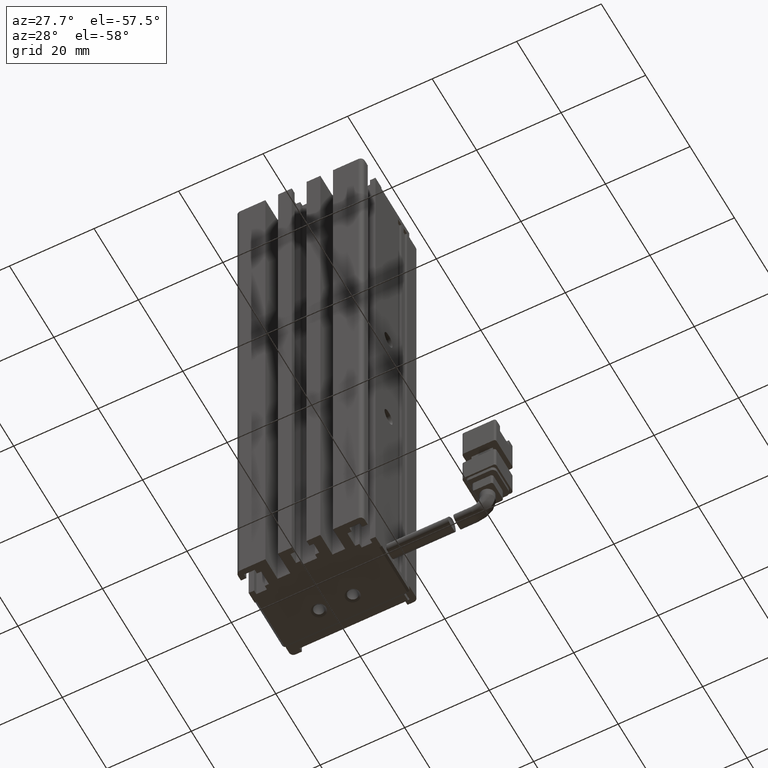
[diagram: clean part render]
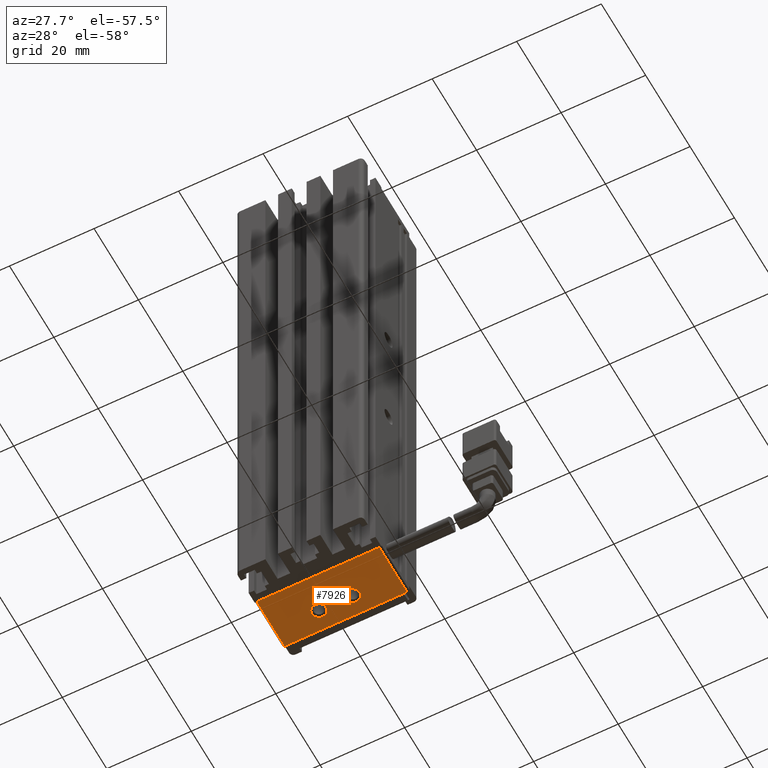
[diagram: same view with one face highlighted and labeled with its STEP entity id]
A machine part, auxiliary view. The second image highlights one B-rep face of the part: STEP entity #7926.
In plain terms, the highlighted planar face has unit normal (0, 0, -1).
Its self-contained STEP definition (entity closure, byte-faithful):
#24 = EDGE_CURVE ( 'NONE', #589, #25171, #19708, .T. ) ;
#589 = VERTEX_POINT ( 'NONE', #9121 ) ;
#909 = FACE_BOUND ( 'NONE', #29024, .T. ) ;
#1016 = CARTESIAN_POINT ( 'NONE',  ( 35.22537974680740500, 27.19594479660386500, -184.9999999999809000 ) ) ;
#1763 = FACE_OUTER_BOUND ( 'NONE', #21278, .T. ) ;
#2201 = CIRCLE ( 'NONE', #22868, 1.700000000008916600 ) ;
#2291 = VECTOR ( 'NONE', #5224, 1000.000000000000000 ) ;
#2828 = EDGE_CURVE ( 'NONE', #21758, #8949, #24576, .T. ) ;
#2857 = DIRECTION ( 'NONE',  ( -0.0000000000000000000, -0.0000000000000000000, 1.000000000000000000 ) ) ;
#3380 = ORIENTED_EDGE ( 'NONE', *, *, #34125, .T. ) ;
#3782 = AXIS2_PLACEMENT_3D ( 'NONE', #20052, #2857, #22919 ) ;
#4656 = VERTEX_POINT ( 'NONE', #1016 ) ;
#4860 = CARTESIAN_POINT ( 'NONE',  ( 26.42537974683542500, 25.69594479660386500, -185.0000000000000000 ) ) ;
#5224 = DIRECTION ( 'NONE',  ( -0.0000000000000000000, -1.000000000000000000, -0.0000000000000000000 ) ) ;
#5235 = EDGE_CURVE ( 'NONE', #8949, #9967, #16528, .T. ) ;
#6006 = EDGE_CURVE ( 'NONE', #4656, #33887, #9673, .T. ) ;
#6600 = CARTESIAN_POINT ( 'NONE',  ( 40.92537974683542500, 19.19594479660386500, -185.0000000000000000 ) ) ;
#7535 = EDGE_LOOP ( 'NONE', ( #34398, #23335 ) ) ;
#7926 = ADVANCED_FACE ( 'NONE', ( #1763, #30505, #909 ), #29436, .T. ) ;
#8826 = DIRECTION ( 'NONE',  ( -0.0000000000000000000, -0.0000000000000000000, 1.000000000000000000 ) ) ;
#8949 = VERTEX_POINT ( 'NONE', #10388 ) ;
#9121 = CARTESIAN_POINT ( 'NONE',  ( 43.22537974682651200, 27.19594479660386500, -185.0000000000000000 ) ) ;
#9252 = CARTESIAN_POINT ( 'NONE',  ( 36.92537974683541800, 27.19594479660386500, -184.9999999999809000 ) ) ;
#9350 = VECTOR ( 'NONE', #29532, 1000.000000000000000 ) ;
#9673 = CIRCLE ( 'NONE', #36397, 1.700000000028012400 ) ;
#9940 = LINE ( 'NONE', #13775, #2291 ) ;
#9967 = VERTEX_POINT ( 'NONE', #29375 ) ;
#10388 = CARTESIAN_POINT ( 'NONE',  ( 26.42537974683542500, 19.19594479660386500, -185.0000000000000000 ) ) ;
#10582 = ORIENTED_EDGE ( 'NONE', *, *, #12462, .T. ) ;
#11295 = VECTOR ( 'NONE', #19657, 1000.000000000000000 ) ;
#11933 = ORIENTED_EDGE ( 'NONE', *, *, #24, .T. ) ;
#12149 = DIRECTION ( 'NONE',  ( -1.000000000000000000, 0.0000000000000000000, 0.0000000000000000000 ) ) ;
#12462 = EDGE_CURVE ( 'NONE', #17598, #21758, #9940, .T. ) ;
#13753 = CARTESIAN_POINT ( 'NONE',  ( 44.92537974683542500, 27.19594479660386500, -185.0000000000000000 ) ) ;
#13775 = CARTESIAN_POINT ( 'NONE',  ( 55.42537974683541800, 25.69594479660386500, -185.0000000000000000 ) ) ;
#14112 = ORIENTED_EDGE ( 'NONE', *, *, #33632, .T. ) ;
#15268 = DIRECTION ( 'NONE',  ( 0.0000000000000000000, 0.0000000000000000000, -1.000000000000000000 ) ) ;
#16237 = AXIS2_PLACEMENT_3D ( 'NONE', #32425, #15268, #35327 ) ;
#16528 = LINE ( 'NONE', #4860, #31801 ) ;
#16616 = DIRECTION ( 'NONE',  ( -1.000000000000000000, 0.0000000000000000000, 0.0000000000000000000 ) ) ;
#16767 = CARTESIAN_POINT ( 'NONE',  ( 40.92537974683542500, 31.69594479660386500, -185.0000000000000000 ) ) ;
#17598 = VERTEX_POINT ( 'NONE', #17972 ) ;
#17972 = CARTESIAN_POINT ( 'NONE',  ( 55.42537974683542500, 31.69594479660386800, -185.0000000000000000 ) ) ;
#17974 = LINE ( 'NONE', #16767, #11295 ) ;
#19657 = DIRECTION ( 'NONE',  ( 1.000000000000000000, -0.0000000000000000000, 0.0000000000000000000 ) ) ;
#19708 = CIRCLE ( 'NONE', #3782, 1.700000000008916600 ) ;
#20052 = CARTESIAN_POINT ( 'NONE',  ( 44.92537974683542500, 27.19594479660386500, -185.0000000000000000 ) ) ;
#21278 = EDGE_LOOP ( 'NONE', ( #10582, #22869, #23713, #14112 ) ) ;
#21758 = VERTEX_POINT ( 'NONE', #24561 ) ;
#22868 = AXIS2_PLACEMENT_3D ( 'NONE', #13753, #33856, #16616 ) ;
#22869 = ORIENTED_EDGE ( 'NONE', *, *, #2828, .T. ) ;
#22919 = DIRECTION ( 'NONE',  ( -1.000000000000000000, 0.0000000000000000000, 0.0000000000000000000 ) ) ;
#23335 = ORIENTED_EDGE ( 'NONE', *, *, #24453, .T. ) ;
#23713 = ORIENTED_EDGE ( 'NONE', *, *, #5235, .T. ) ;
#24453 = EDGE_CURVE ( 'NONE', #33887, #4656, #37061, .T. ) ;
#24561 = CARTESIAN_POINT ( 'NONE',  ( 55.42537974683541100, 19.19594479660386500, -185.0000000000000000 ) ) ;
#24576 = LINE ( 'NONE', #6600, #9350 ) ;
#24808 = DIRECTION ( 'NONE',  ( 0.0000000000000000000, 1.000000000000000000, 0.0000000000000000000 ) ) ;
#25171 = VERTEX_POINT ( 'NONE', #32081 ) ;
#26015 = CARTESIAN_POINT ( 'NONE',  ( 36.92537974683541800, 27.19594479660386500, -184.9999999999809000 ) ) ;
#28870 = DIRECTION ( 'NONE',  ( -1.000000000000000000, 0.0000000000000000000, 0.0000000000000000000 ) ) ;
#29024 = EDGE_LOOP ( 'NONE', ( #11933, #3380 ) ) ;
#29307 = DIRECTION ( 'NONE',  ( -0.0000000000000000000, -0.0000000000000000000, 1.000000000000000000 ) ) ;
#29375 = CARTESIAN_POINT ( 'NONE',  ( 26.42537974683542500, 31.69594479660386800, -185.0000000000000000 ) ) ;
#29436 = PLANE ( 'NONE',  #16237 ) ;
#29532 = DIRECTION ( 'NONE',  ( -1.000000000000000000, 0.0000000000000000000, -0.0000000000000000000 ) ) ;
#30278 = AXIS2_PLACEMENT_3D ( 'NONE', #26015, #8826, #28870 ) ;
#30505 = FACE_BOUND ( 'NONE', #7535, .T. ) ;
#31801 = VECTOR ( 'NONE', #24808, 1000.000000000000000 ) ;
#32081 = CARTESIAN_POINT ( 'NONE',  ( 46.62537974684434500, 27.19594479660386500, -185.0000000000000000 ) ) ;
#32320 = CARTESIAN_POINT ( 'NONE',  ( 38.62537974686343000, 27.19594479660386500, -184.9999999999809000 ) ) ;
#32425 = CARTESIAN_POINT ( 'NONE',  ( 40.92537974683542500, 25.69594479660386500, -185.0000000000000000 ) ) ;
#33632 = EDGE_CURVE ( 'NONE', #9967, #17598, #17974, .T. ) ;
#33856 = DIRECTION ( 'NONE',  ( -0.0000000000000000000, -0.0000000000000000000, 1.000000000000000000 ) ) ;
#33887 = VERTEX_POINT ( 'NONE', #32320 ) ;
#34125 = EDGE_CURVE ( 'NONE', #25171, #589, #2201, .T. ) ;
#34398 = ORIENTED_EDGE ( 'NONE', *, *, #6006, .T. ) ;
#35327 = DIRECTION ( 'NONE',  ( -1.000000000000000000, 0.0000000000000000000, -0.0000000000000000000 ) ) ;
#36397 = AXIS2_PLACEMENT_3D ( 'NONE', #9252, #29307, #12149 ) ;
#37061 = CIRCLE ( 'NONE', #30278, 1.700000000028012400 ) ;